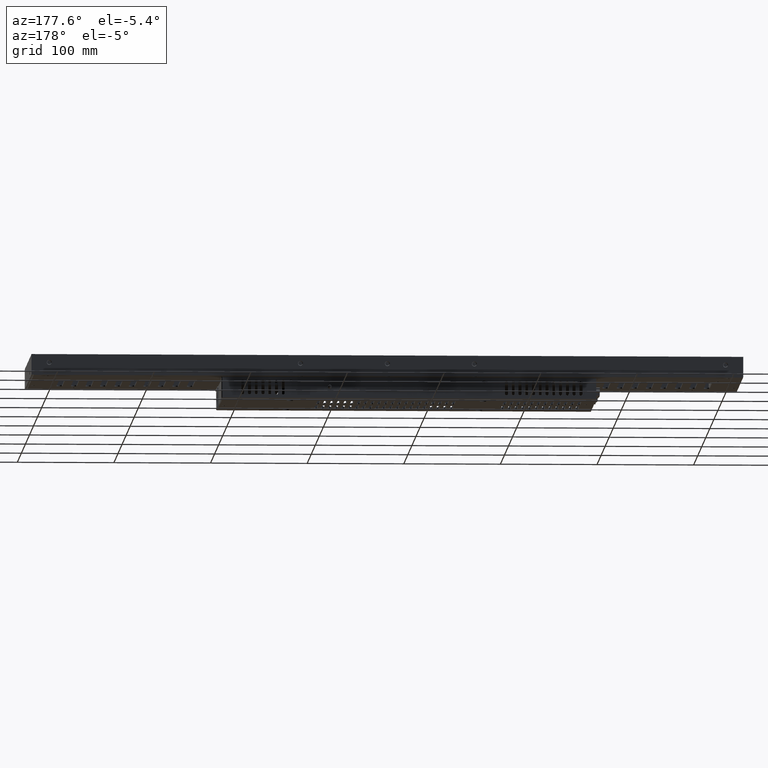
[diagram: clean part render]
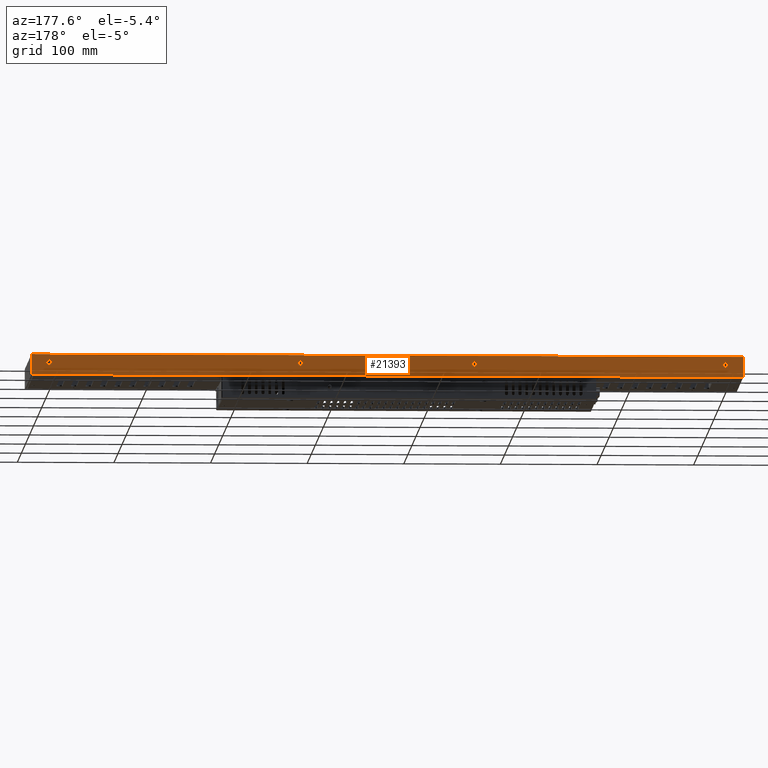
[diagram: same view with one face highlighted and labeled with its STEP entity id]
A machine part, auxiliary view. The second image highlights one B-rep face of the part: STEP entity #21393.
In plain terms, the highlighted planar face has unit normal (0, 1, 0).
Its self-contained STEP definition (entity closure, byte-faithful):
#2657 = CARTESIAN_POINT ( 'NONE',  ( 347.4505622576270400, 83.15000000000000600, -8.500000094800244100 ) ) ;
#2675 = CARTESIAN_POINT ( 'NONE',  ( 352.5494377423614800, 83.15000000000000600, -8.500000350025720400 ) ) ;
#2709 = CARTESIAN_POINT ( 'NONE',  ( 352.5494377423614800, 83.15000000000000600, -8.500000350025720400 ) ) ;
#2710 = CARTESIAN_POINT ( 'NONE',  ( 352.5494375255435700, 83.15000000000000600, -10.00146779702289900 ) ) ;
#2711 = CARTESIAN_POINT ( 'NONE',  ( 351.4853663457567400, 83.15000000000000600, -11.04943785690054600 ) ) ;
#2712 = CARTESIAN_POINT ( 'NONE',  ( 349.9999998033812300, 83.14999999999999100, -11.04943774233363700 ) ) ;
#2713 = CARTESIAN_POINT ( 'NONE',  ( 348.5146333093792900, 83.14999999999999100, -11.04943762776674600 ) ) ;
#2714 = CARTESIAN_POINT ( 'NONE',  ( 347.4505622988612600, 83.14999999999999100, -10.00146745895323800 ) ) ;
#2715 = CARTESIAN_POINT ( 'NONE',  ( 347.4505622576270400, 83.15000000000000600, -8.500000094800244100 ) ) ;
#2716 =( BOUNDED_CURVE ( )  B_SPLINE_CURVE ( 3, ( #2715, #2714, #2713, #2712, #2711, #2710, #2709 ),
 .UNSPECIFIED., .F., .T. ) 
 B_SPLINE_CURVE_WITH_KNOTS ( ( 4, 3, 4 ),
 ( 2.441980587496821500E-011, 0.003984535641501216700, 0.007969071362407700500 ),
 .UNSPECIFIED. ) 
 CURVE ( )  GEOMETRIC_REPRESENTATION_ITEM ( )  RATIONAL_B_SPLINE_CURVE ( ( 1.156758910706653800, 0.9380307557074484300, 0.9481987073488972200, 1.187262765631000200, 0.9481987011196032500, 0.9380307551775557400, 1.156758927804857300 ) ) 
 REPRESENTATION_ITEM ( '' )  );
#2789 = DIRECTION ( 'NONE',  ( 0.0000000000000000000, 0.0000000000000000000, 1.000000000000000000 ) ) ;
#2790 = DIRECTION ( 'NONE',  ( 0.0000000000000000000, -1.000000000000000000, -0.0000000000000000000 ) ) ;
#2791 = AXIS2_PLACEMENT_3D ( 'NONE', #2796, #2790, #2789 ) ;
#2792 = CIRCLE ( 'NONE', #2791, 2.549437742438951400 ) ;
#2796 = CARTESIAN_POINT ( 'NONE',  ( -90.00000000000804300, 83.15000000004602000, -8.500000000006048500 ) ) ;
#2853 = CARTESIAN_POINT ( 'NONE',  ( 347.4505622576270400, 83.15000000000000600, -8.500000094800244100 ) ) ;
#2854 = CARTESIAN_POINT ( 'NONE',  ( 347.4505622164184000, 83.15000000000002000, -6.998532457110624900 ) ) ;
#2855 = CARTESIAN_POINT ( 'NONE',  ( 348.5146334311525600, 83.15000000000002000, -5.950562143100320600 ) ) ;
#2856 = CARTESIAN_POINT ( 'NONE',  ( 350.0000001966186600, 83.14999999999999100, -5.950562257666236500 ) ) ;
#2857 = CARTESIAN_POINT ( 'NONE',  ( 351.4853669137116300, 83.15000000000003400, -5.950562372232153200 ) ) ;
#2858 = CARTESIAN_POINT ( 'NONE',  ( 352.5494379591768300, 83.15000000000002000, -6.998532795180149300 ) ) ;
#2859 = CARTESIAN_POINT ( 'NONE',  ( 352.5494377423614800, 83.15000000000000600, -8.500000350025720400 ) ) ;
#2861 =( BOUNDED_CURVE ( )  B_SPLINE_CURVE ( 3, ( #2859, #2858, #2857, #2856, #2855, #2854, #2853 ),
 .UNSPECIFIED., .F., .T. ) 
 B_SPLINE_CURVE_WITH_KNOTS ( ( 4, 3, 4 ),
 ( 1.782980892119053900E-011, 0.003984536071325560400, 0.007969072228646380300 ),
 .UNSPECIFIED. ) 
 CURVE ( )  GEOMETRIC_REPRESENTATION_ITEM ( )  RATIONAL_B_SPLINE_CURVE ( ( 1.156758989416068100, 0.9380307532681576600, 0.9481986786731351200, 1.187262765631000200, 0.9481986724438413700, 0.9380307527382665300, 1.156759006514275000 ) ) 
 REPRESENTATION_ITEM ( '' )  );
#2884 = DIRECTION ( 'NONE',  ( 0.0000000000000000000, 0.0000000000000000000, 1.000000000000000000 ) ) ;
#2885 = DIRECTION ( 'NONE',  ( 0.0000000000000000000, -1.000000000000000000, -0.0000000000000000000 ) ) ;
#2886 = CARTESIAN_POINT ( 'NONE',  ( 89.99999999999992900, 83.14999999998917700, -8.499999999994463100 ) ) ;
#2887 = AXIS2_PLACEMENT_3D ( 'NONE', #2886, #2885, #2884 ) ;
#2888 = CIRCLE ( 'NONE', #2887, 2.549437742370523500 ) ;
#2894 =( BOUNDED_CURVE ( )  B_SPLINE_CURVE ( 3, ( #2938, #2937, #2936, #2935, #2934, #2933, #2932 ),
 .UNSPECIFIED., .F., .T. ) 
 B_SPLINE_CURVE_WITH_KNOTS ( ( 4, 3, 4 ),
 ( 2.441982126588465900E-011, 0.003984535641501315600, 0.007969071362407967700 ),
 .UNSPECIFIED. ) 
 CURVE ( )  GEOMETRIC_REPRESENTATION_ITEM ( )  RATIONAL_B_SPLINE_CURVE ( ( 1.156758910706654900, 0.9380307557074483200, 0.9481987073488967700, 1.187262765631000200, 0.9481987011195979200, 0.9380307551775553000, 1.156758927804872400 ) ) 
 REPRESENTATION_ITEM ( '' )  );
#2903 = CARTESIAN_POINT ( 'NONE',  ( -352.5494377423614800, 83.15000000000000600, -8.499999649974286700 ) ) ;
#2914 = CARTESIAN_POINT ( 'NONE',  ( -347.4505622576271500, 83.14999999999999100, -8.499999905199750600 ) ) ;
#2932 = CARTESIAN_POINT ( 'NONE',  ( -352.5494377423614800, 83.15000000000000600, -8.499999649974286700 ) ) ;
#2933 = CARTESIAN_POINT ( 'NONE',  ( -352.5494375255436200, 83.15000000000002000, -6.998532202976360100 ) ) ;
#2934 = CARTESIAN_POINT ( 'NONE',  ( -351.4853663457566300, 83.15000000000002000, -5.950562143100341000 ) ) ;
#2935 = CARTESIAN_POINT ( 'NONE',  ( -349.9999998033812300, 83.14999999999999100, -5.950562257666240900 ) ) ;
#2936 = CARTESIAN_POINT ( 'NONE',  ( -348.5146333093793500, 83.15000000000002000, -5.950562372232084000 ) ) ;
#2937 = CARTESIAN_POINT ( 'NONE',  ( -347.4505622988613100, 83.15000000000003400, -6.998532541046662600 ) ) ;
#2938 = CARTESIAN_POINT ( 'NONE',  ( -347.4505622576271500, 83.14999999999999100, -8.499999905199750600 ) ) ;
#2941 = CIRCLE ( 'NONE', #2999, 2.549437742261778000 ) ;
#2996 = DIRECTION ( 'NONE',  ( 0.0000000000000000000, 0.0000000000000000000, 1.000000000000000000 ) ) ;
#2997 = DIRECTION ( 'NONE',  ( 0.0000000000000000000, -1.000000000000000000, -0.0000000000000000000 ) ) ;
#2998 = CARTESIAN_POINT ( 'NONE',  ( 2.884232634642679400E-013, 83.14999999998917700, -8.499999999999392500 ) ) ;
#2999 = AXIS2_PLACEMENT_3D ( 'NONE', #2998, #2997, #2996 ) ;
#3002 = CARTESIAN_POINT ( 'NONE',  ( -350.0000001966187100, 83.14999999999999100, -11.04943774233364600 ) ) ;
#3003 = CARTESIAN_POINT ( 'NONE',  ( -351.4853669137115700, 83.15000000000002000, -11.04943762776674100 ) ) ;
#3004 = CARTESIAN_POINT ( 'NONE',  ( -352.5494379591767700, 83.15000000000002000, -10.00146720481975700 ) ) ;
#3005 = CARTESIAN_POINT ( 'NONE',  ( -352.5494377423614800, 83.15000000000000600, -8.499999649974286700 ) ) ;
#3006 =( BOUNDED_CURVE ( )  B_SPLINE_CURVE ( 3, ( #3005, #3004, #3003, #3002, #3059, #3058, #3057 ),
 .UNSPECIFIED., .F., .T. ) 
 B_SPLINE_CURVE_WITH_KNOTS ( ( 4, 3, 4 ),
 ( 1.782982089190045900E-011, 0.003984536071325485800, 0.007969072228646323000 ),
 .UNSPECIFIED. ) 
 CURVE ( )  GEOMETRIC_REPRESENTATION_ITEM ( )  RATIONAL_B_SPLINE_CURVE ( ( 1.156758989416067700, 0.9380307532681577700, 0.9481986786731352300, 1.187262765631000200, 0.9481986724438352700, 0.9380307527382658600, 1.156759006514292300 ) ) 
 REPRESENTATION_ITEM ( '' )  );
#3021 = CARTESIAN_POINT ( 'NONE',  ( 368.2999999999968300, 83.15000000000000600, -21.29999999999999700 ) ) ;
#3057 = CARTESIAN_POINT ( 'NONE',  ( -347.4505622576271500, 83.14999999999999100, -8.499999905199750600 ) ) ;
#3058 = CARTESIAN_POINT ( 'NONE',  ( -347.4505622164183500, 83.15000000000002000, -10.00146754289025900 ) ) ;
#3059 = CARTESIAN_POINT ( 'NONE',  ( -348.5146334311525000, 83.15000000000003400, -11.04943785690056900 ) ) ;
#3066 = DIRECTION ( 'NONE',  ( -1.000000000000000000, 0.0000000000000000000, -0.0000000000000000000 ) ) ;
#3067 = VECTOR ( 'NONE', #3066, 1000.000000000000000 ) ;
#3068 = CARTESIAN_POINT ( 'NONE',  ( 381.3679999999999900, 83.15000000000000600, -21.29999999999999700 ) ) ;
#3069 = LINE ( 'NONE', #3068, #3067 ) ;
#3074 = CARTESIAN_POINT ( 'NONE',  ( -368.3000000000000100, 83.14999999999997700, -21.29999999999999700 ) ) ;
#3746 = LINE ( 'NONE', #3807, #3806 ) ;
#3788 = CARTESIAN_POINT ( 'NONE',  ( -368.2999999999968300, 83.14999999999997700, 0.0000000000000000000 ) ) ;
#3789 = DIRECTION ( 'NONE',  ( -0.0000000000000000000, -0.0000000000000000000, -1.000000000000000000 ) ) ;
#3790 = VECTOR ( 'NONE', #3789, 1000.000000000000000 ) ;
#3791 = CARTESIAN_POINT ( 'NONE',  ( -368.3000000000000100, 83.14999999999990600, -22.20652921783999600 ) ) ;
#3792 = LINE ( 'NONE', #3791, #3790 ) ;
#3804 = CARTESIAN_POINT ( 'NONE',  ( 368.2999999999937600, 83.15000000000000600, 0.0000000000000000000 ) ) ;
#3805 = DIRECTION ( 'NONE',  ( -0.0000000000000000000, -0.0000000000000000000, -1.000000000000000000 ) ) ;
#3806 = VECTOR ( 'NONE', #3805, 1000.000000000000000 ) ;
#3807 = CARTESIAN_POINT ( 'NONE',  ( 368.2999999999873900, 83.15000000000000600, -22.20652921783999600 ) ) ;
#3815 = DIRECTION ( 'NONE',  ( 0.0000000000000000000, 0.0000000000000000000, 1.000000000000000000 ) ) ;
#3816 = DIRECTION ( 'NONE',  ( 0.0000000000000000000, 1.000000000000000000, -0.0000000000000000000 ) ) ;
#3817 = AXIS2_PLACEMENT_3D ( 'NONE', #3819, #3816, #3815 ) ;
#3819 = CARTESIAN_POINT ( 'NONE',  ( 381.3679999999999900, 83.15000000000000600, -22.20652921783999600 ) ) ;
#3820 = PLANE ( 'NONE',  #3817 ) ;
#3821 = FACE_OUTER_BOUND ( 'NONE', #21352, .T. ) ;
#3822 = FACE_BOUND ( 'NONE', #21339, .T. ) ;
#3823 = FACE_BOUND ( 'NONE', #21290, .T. ) ;
#3824 = FACE_BOUND ( 'NONE', #21279, .T. ) ;
#3825 = FACE_BOUND ( 'NONE', #21405, .T. ) ;
#3830 = FACE_BOUND ( 'NONE', #21394, .T. ) ;
#3841 = DIRECTION ( 'NONE',  ( -1.000000000000000000, -0.0000000000000000000, 0.0000000000000000000 ) ) ;
#3842 = VECTOR ( 'NONE', #3841, 1000.000000000000000 ) ;
#3843 = CARTESIAN_POINT ( 'NONE',  ( -382.4080000000000200, 83.15000000000002000, 0.0000000000000000000 ) ) ;
#3844 = LINE ( 'NONE', #3843, #3842 ) ;
#18777 = VERTEX_POINT ( 'NONE', #50616 ) ;
#18782 = EDGE_CURVE ( 'NONE', #18784, #18777, #50615, .T. ) ;
#18784 = VERTEX_POINT ( 'NONE', #50610 ) ;
#18823 = EDGE_CURVE ( 'NONE', #18825, #18957, #50672, .T. ) ;
#18825 = VERTEX_POINT ( 'NONE', #50667 ) ;
#18861 = VERTEX_POINT ( 'NONE', #50686 ) ;
#18868 = EDGE_CURVE ( 'NONE', #18870, #18861, #50679, .T. ) ;
#18870 = VERTEX_POINT ( 'NONE', #50734 ) ;
#18957 = VERTEX_POINT ( 'NONE', #50803 ) ;
#20423 = VERTEX_POINT ( 'NONE', #2657 ) ;
#20490 = VERTEX_POINT ( 'NONE', #2675 ) ;
#20497 = EDGE_CURVE ( 'NONE', #20423, #20490, #2716, .T. ) ;
#20558 = EDGE_CURVE ( 'NONE', #18777, #18784, #2792, .T. ) ;
#20571 = EDGE_CURVE ( 'NONE', #20490, #20423, #2861, .T. ) ;
#20600 = EDGE_CURVE ( 'NONE', #18957, #18825, #2888, .T. ) ;
#20623 = VERTEX_POINT ( 'NONE', #2914 ) ;
#20640 = VERTEX_POINT ( 'NONE', #2903 ) ;
#20647 = EDGE_CURVE ( 'NONE', #20623, #20640, #2894, .T. ) ;
#20671 = EDGE_CURVE ( 'NONE', #18861, #18870, #2941, .T. ) ;
#20707 = VERTEX_POINT ( 'NONE', #3021 ) ;
#20730 = EDGE_CURVE ( 'NONE', #20640, #20623, #3006, .T. ) ;
#20777 = VERTEX_POINT ( 'NONE', #3074 ) ;
#20784 = EDGE_CURVE ( 'NONE', #20707, #20777, #3069, .T. ) ;
#21269 = ORIENTED_EDGE ( 'NONE', *, *, #18782, .T. ) ;
#21273 = ORIENTED_EDGE ( 'NONE', *, *, #20558, .T. ) ;
#21279 = EDGE_LOOP ( 'NONE', ( #21281, #21284 ) ) ;
#21281 = ORIENTED_EDGE ( 'NONE', *, *, #18868, .T. ) ;
#21284 = ORIENTED_EDGE ( 'NONE', *, *, #20671, .T. ) ;
#21290 = EDGE_LOOP ( 'NONE', ( #21294, #21298 ) ) ;
#21294 = ORIENTED_EDGE ( 'NONE', *, *, #18823, .T. ) ;
#21298 = ORIENTED_EDGE ( 'NONE', *, *, #20600, .T. ) ;
#21331 = EDGE_CURVE ( 'NONE', #21333, #20707, #3746, .T. ) ;
#21333 = VERTEX_POINT ( 'NONE', #3804 ) ;
#21339 = EDGE_LOOP ( 'NONE', ( #21345, #21347 ) ) ;
#21345 = ORIENTED_EDGE ( 'NONE', *, *, #20497, .T. ) ;
#21347 = ORIENTED_EDGE ( 'NONE', *, *, #20571, .T. ) ;
#21352 = EDGE_LOOP ( 'NONE', ( #21356, #21358, #21361, #21371 ) ) ;
#21356 = ORIENTED_EDGE ( 'NONE', *, *, #21331, .T. ) ;
#21358 = ORIENTED_EDGE ( 'NONE', *, *, #20784, .T. ) ;
#21361 = ORIENTED_EDGE ( 'NONE', *, *, #21366, .F. ) ;
#21366 = EDGE_CURVE ( 'NONE', #21369, #20777, #3792, .T. ) ;
#21369 = VERTEX_POINT ( 'NONE', #3788 ) ;
#21371 = ORIENTED_EDGE ( 'NONE', *, *, #21375, .F. ) ;
#21375 = EDGE_CURVE ( 'NONE', #21333, #21369, #3844, .T. ) ;
#21393 = ADVANCED_FACE ( 'NONE', ( #3830, #3825, #3824, #3823, #3822, #3821 ), #3820, .T. ) ;
#21394 = EDGE_LOOP ( 'NONE', ( #21396, #21403 ) ) ;
#21396 = ORIENTED_EDGE ( 'NONE', *, *, #20647, .T. ) ;
#21403 = ORIENTED_EDGE ( 'NONE', *, *, #20730, .T. ) ;
#21405 = EDGE_LOOP ( 'NONE', ( #21269, #21273 ) ) ;
#50610 = CARTESIAN_POINT ( 'NONE',  ( -90.00000000000804300, 83.15000000004602000, -5.950562257567096200 ) ) ;
#50611 = DIRECTION ( 'NONE',  ( 0.0000000000000000000, 0.0000000000000000000, 1.000000000000000000 ) ) ;
#50612 = DIRECTION ( 'NONE',  ( 0.0000000000000000000, -1.000000000000000000, -0.0000000000000000000 ) ) ;
#50613 = CARTESIAN_POINT ( 'NONE',  ( -90.00000000000804300, 83.15000000004602000, -8.500000000006048500 ) ) ;
#50614 = AXIS2_PLACEMENT_3D ( 'NONE', #50613, #50612, #50611 ) ;
#50615 = CIRCLE ( 'NONE', #50614, 2.549437742438951400 ) ;
#50616 = CARTESIAN_POINT ( 'NONE',  ( -90.00000000000804300, 83.15000000004602000, -11.04943774244500100 ) ) ;
#50667 = CARTESIAN_POINT ( 'NONE',  ( 89.99999999999992900, 83.14999999998917700, -5.950562257623939600 ) ) ;
#50668 = DIRECTION ( 'NONE',  ( 0.0000000000000000000, 0.0000000000000000000, 1.000000000000000000 ) ) ;
#50669 = DIRECTION ( 'NONE',  ( 0.0000000000000000000, -1.000000000000000000, -0.0000000000000000000 ) ) ;
#50670 = CARTESIAN_POINT ( 'NONE',  ( 89.99999999999992900, 83.14999999998917700, -8.499999999994463100 ) ) ;
#50671 = AXIS2_PLACEMENT_3D ( 'NONE', #50670, #50669, #50668 ) ;
#50672 = CIRCLE ( 'NONE', #50671, 2.549437742370523500 ) ;
#50676 = DIRECTION ( 'NONE',  ( 0.0000000000000000000, -1.000000000000000000, -0.0000000000000000000 ) ) ;
#50677 = CARTESIAN_POINT ( 'NONE',  ( 2.884232634642679400E-013, 83.14999999998917700, -8.499999999999392500 ) ) ;
#50678 = AXIS2_PLACEMENT_3D ( 'NONE', #50677, #50676, #50735 ) ;
#50679 = CIRCLE ( 'NONE', #50678, 2.549437742261778000 ) ;
#50686 = CARTESIAN_POINT ( 'NONE',  ( 2.887354692300527800E-013, 83.14999999998917700, -11.04943774226116900 ) ) ;
#50734 = CARTESIAN_POINT ( 'NONE',  ( 2.884232634642679400E-013, 83.14999999998917700, -5.950562257737614000 ) ) ;
#50735 = DIRECTION ( 'NONE',  ( 0.0000000000000000000, 0.0000000000000000000, 1.000000000000000000 ) ) ;
#50803 = CARTESIAN_POINT ( 'NONE',  ( 89.99999999999992900, 83.14999999998917700, -11.04943774236498800 ) ) ;